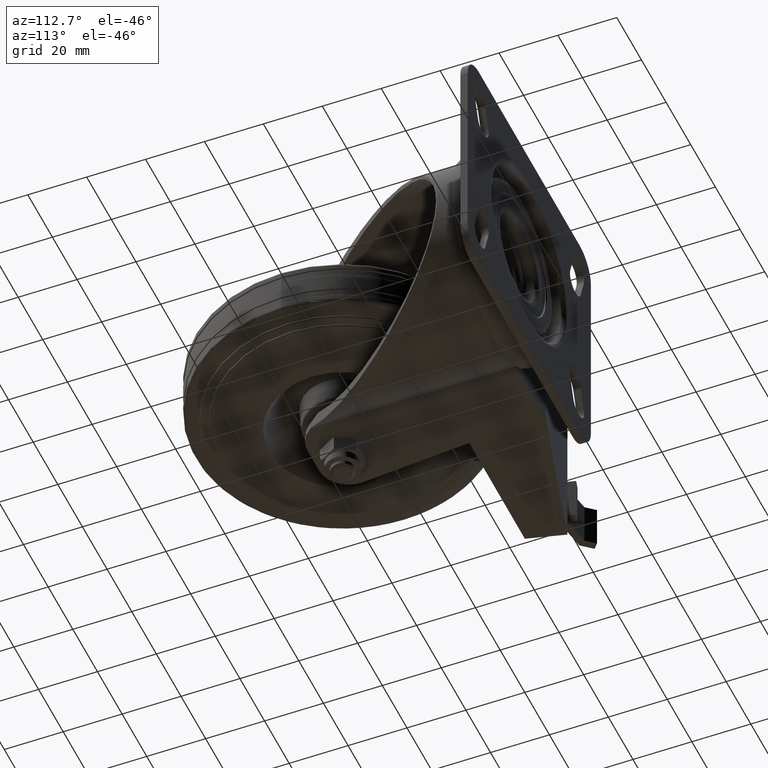
[diagram: clean part render]
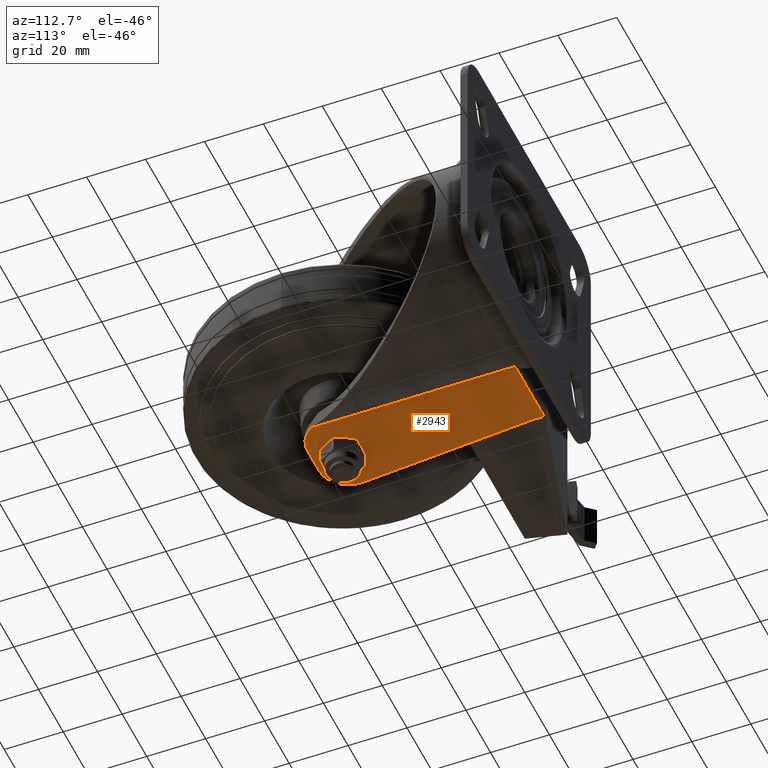
[diagram: same view with one face highlighted and labeled with its STEP entity id]
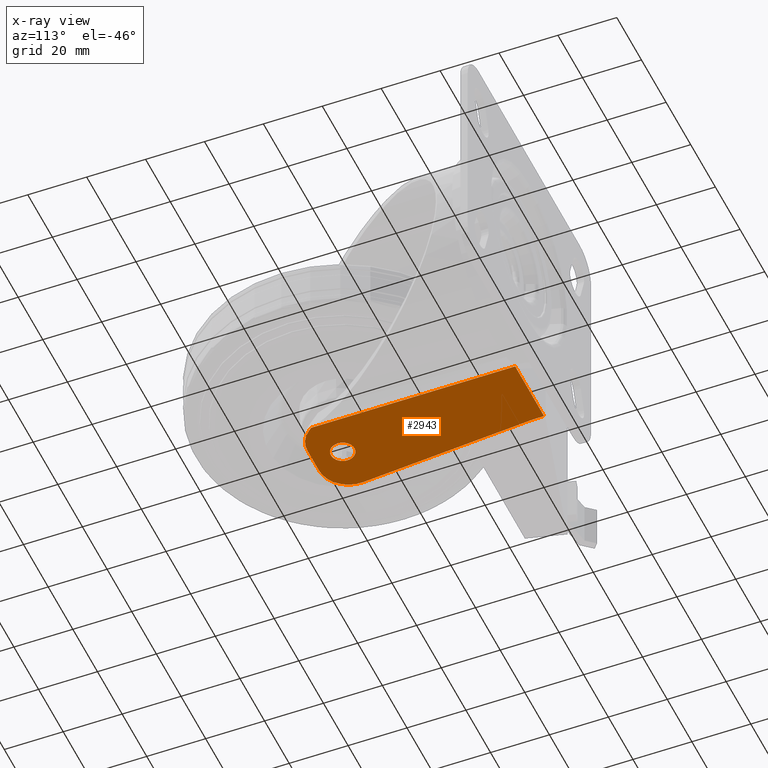
[diagram: x-ray of the same camera — body ghosted, the highlighted face saturated]
A machine part, auxiliary view. The second image highlights one B-rep face of the part: STEP entity #2943.
The next image is the same camera in x-ray: the body ghosted, the highlighted face saturated — about 0% of this face is hidden behind the body in this view.
In plain terms, the highlighted planar face has unit normal (0, 0, 1).
Its self-contained STEP definition (entity closure, byte-faithful):
#118=FACE_BOUND('',#920,.T.);
#176=PLANE('',#3297);
#269=LINE('',#4847,#463);
#277=LINE('',#4876,#471);
#284=LINE('',#4893,#478);
#288=LINE('',#4911,#482);
#293=LINE('',#4926,#487);
#294=LINE('',#4927,#488);
#463=VECTOR('',#3775,1000.);
#471=VECTOR('',#3801,1000.);
#478=VECTOR('',#3816,1000.);
#482=VECTOR('',#3840,1000.);
#487=VECTOR('',#3855,1000.);
#488=VECTOR('',#3856,1000.);
#724=FACE_OUTER_BOUND('',#919,.T.);
#919=EDGE_LOOP('',(#2276,#2277,#2278,#2279,#2280,#2281,#2282,#2283));
#920=EDGE_LOOP('',(#2284));
#1112=CIRCLE('',#3275,10.);
#1116=CIRCLE('',#3288,10.);
#1122=CIRCLE('',#3298,4.);
#1372=VERTEX_POINT('',#4844);
#1373=VERTEX_POINT('',#4846);
#1380=VERTEX_POINT('',#4862);
#1381=VERTEX_POINT('',#4864);
#1385=VERTEX_POINT('',#4875);
#1391=VERTEX_POINT('',#4891);
#1395=VERTEX_POINT('',#4910);
#1400=VERTEX_POINT('',#4925);
#1401=VERTEX_POINT('',#4928);
#1684=EDGE_CURVE('',#1372,#1373,#269,.T.);
#1692=EDGE_CURVE('',#1381,#1380,#1112,.F.);
#1698=EDGE_CURVE('',#1381,#1385,#277,.T.);
#1707=EDGE_CURVE('',#1391,#1380,#284,.T.);
#1711=EDGE_CURVE('',#1391,#1373,#1116,.F.);
#1717=EDGE_CURVE('',#1395,#1385,#288,.T.);
#1725=EDGE_CURVE('',#1400,#1372,#293,.T.);
#1726=EDGE_CURVE('',#1395,#1400,#294,.T.);
#1727=EDGE_CURVE('',#1401,#1401,#1122,.F.);
#2276=ORIENTED_EDGE('',*,*,#1698,.F.);
#2277=ORIENTED_EDGE('',*,*,#1692,.T.);
#2278=ORIENTED_EDGE('',*,*,#1707,.F.);
#2279=ORIENTED_EDGE('',*,*,#1711,.T.);
#2280=ORIENTED_EDGE('',*,*,#1684,.F.);
#2281=ORIENTED_EDGE('',*,*,#1725,.F.);
#2282=ORIENTED_EDGE('',*,*,#1726,.F.);
#2283=ORIENTED_EDGE('',*,*,#1717,.T.);
#2284=ORIENTED_EDGE('',*,*,#1727,.F.);
#2943=ADVANCED_FACE('',(#724,#118),#176,.F.);
#3275=AXIS2_PLACEMENT_3D('',#4865,#3790,#3791);
#3288=AXIS2_PLACEMENT_3D('',#4899,#3827,#3828);
#3297=AXIS2_PLACEMENT_3D('',#4924,#3853,#3854);
#3298=AXIS2_PLACEMENT_3D('',#4929,#3857,#3858);
#3775=DIRECTION('',(-0.0779525209182045,-0.996957072537477,0.));
#3790=DIRECTION('center_axis',(0.,0.,1.));
#3791=DIRECTION('ref_axis',(1.,0.,0.));
#3801=DIRECTION('',(0.639276614650613,0.768976859184235,0.));
#3816=DIRECTION('',(1.,0.,0.));
#3827=DIRECTION('center_axis',(0.,0.,1.));
#3828=DIRECTION('ref_axis',(1.,0.,0.));
#3840=DIRECTION('',(0.,-1.,0.));
#3853=DIRECTION('center_axis',(0.,0.,1.));
#3854=DIRECTION('ref_axis',(1.,0.,0.));
#3855=DIRECTION('',(0.,-1.,0.));
#3856=DIRECTION('',(-1.,0.,0.));
#3857=DIRECTION('center_axis',(0.,0.,1.));
#3858=DIRECTION('ref_axis',(1.,0.,0.));
#4844=CARTESIAN_POINT('',(-10.,60.5000000000001,-25.));
#4846=CARTESIAN_POINT('',(-14.6695707253748,0.779525209182047,-25.));
#4847=CARTESIAN_POINT('',(-14.6410107264425,1.14478719932423,-25.));
#4862=CARTESIAN_POINT('',(4.69999999999999,-10.,-25.));
#4864=CARTESIAN_POINT('',(12.3897685918424,-6.39276614650612,-25.));
#4865=CARTESIAN_POINT('Origin',(4.69999999999999,6.93889390390723E-15,-25.));
#4875=CARTESIAN_POINT('',(13.459340771462,-5.10619279702695,-25.));
#4876=CARTESIAN_POINT('',(10.4689980186583,-8.70323408594074,-25.));
#4891=CARTESIAN_POINT('',(-4.7,-10.,-25.));
#4893=CARTESIAN_POINT('',(0.,-10.,-25.));
#4899=CARTESIAN_POINT('Origin',(-4.7,1.73472347597681E-15,-25.));
#4910=CARTESIAN_POINT('',(13.459340771462,64.2,-25.));
#4911=CARTESIAN_POINT('',(13.459340771462,-10.,-25.));
#4924=CARTESIAN_POINT('Origin',(0.,0.,-25.));
#4925=CARTESIAN_POINT('',(-10.,64.2,-25.));
#4926=CARTESIAN_POINT('',(-10.,0.,-25.));
#4927=CARTESIAN_POINT('',(30.,64.2,-25.));
#4928=CARTESIAN_POINT('',(4.,0.,-25.));
#4929=CARTESIAN_POINT('Origin',(0.,0.,-25.));